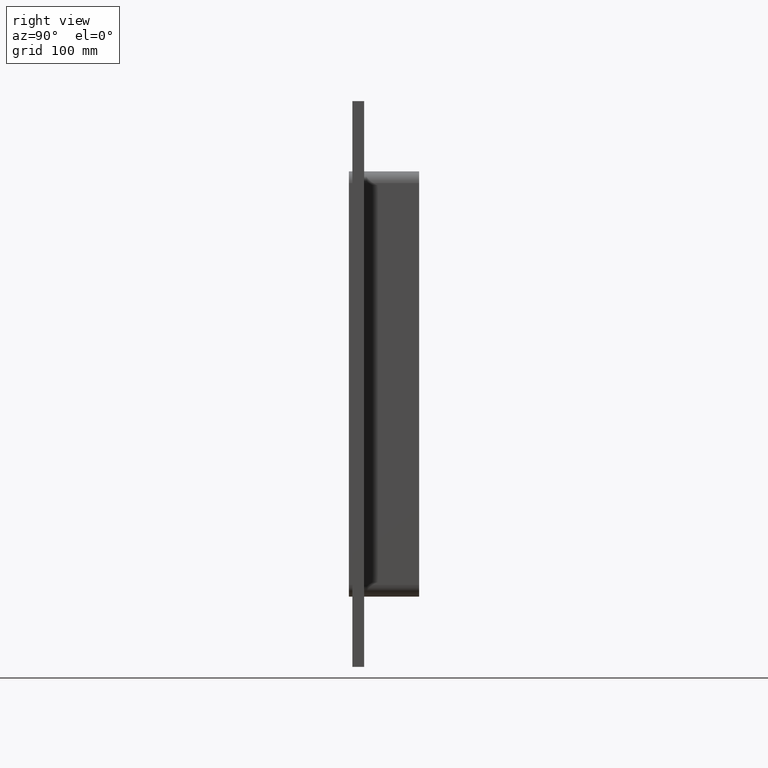
[diagram: clean part render]
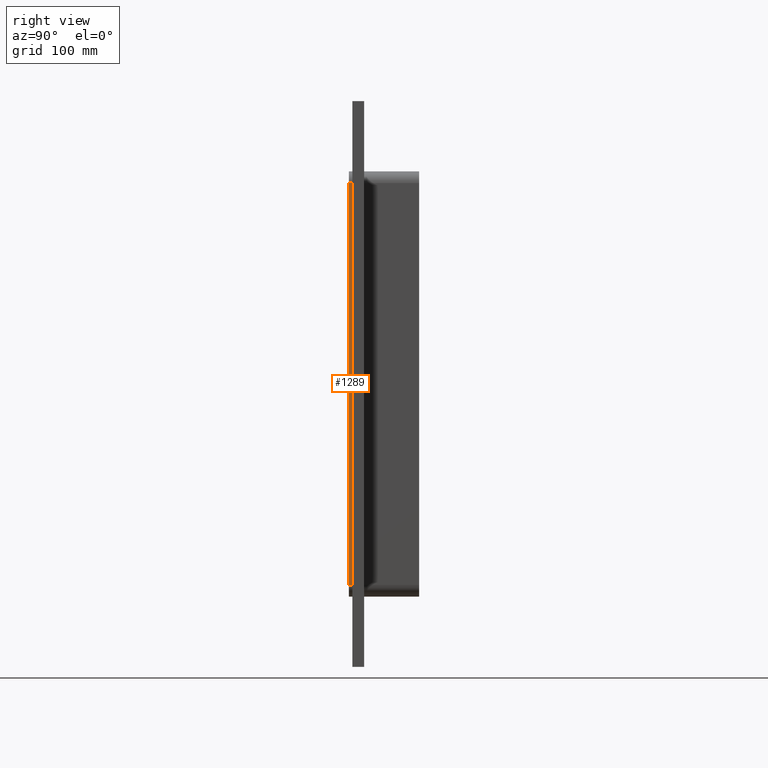
[diagram: same view with one face highlighted and labeled with its STEP entity id]
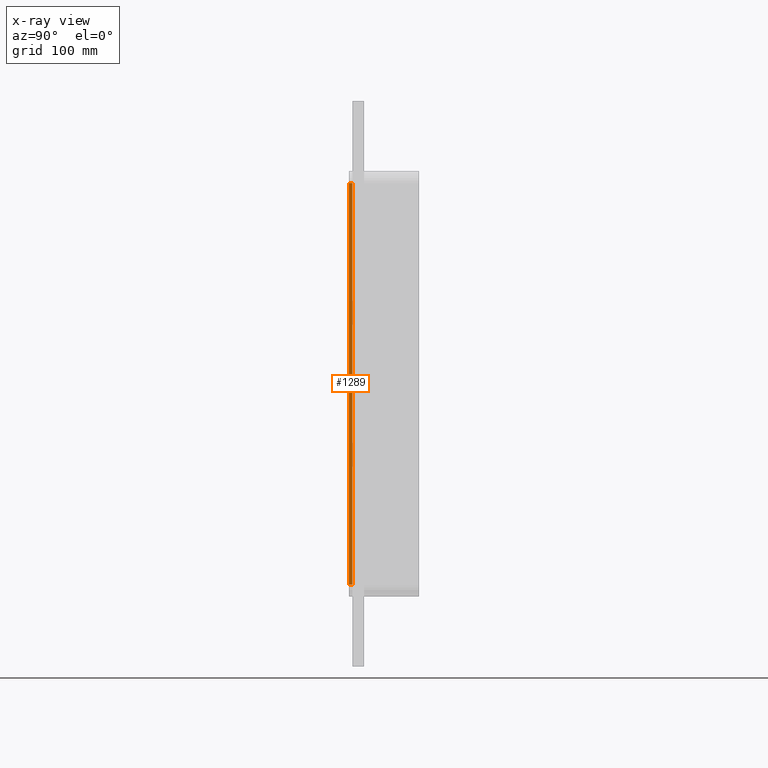
[diagram: x-ray of the same camera — body ghosted, the highlighted face saturated]
A machine part, right view. The second image highlights one B-rep face of the part: STEP entity #1289.
The next image is the same camera in x-ray: the body ghosted, the highlighted face saturated — about 0% of this face is hidden behind the body in this view.
In plain terms, the highlighted planar face has unit normal (1, 0, 0).
Its self-contained STEP definition (entity closure, byte-faithful):
#1092=CARTESIAN_POINT('',(135.5,0.0,171.50000000000003));
#1093=VERTEX_POINT('',#1092);
#1101=CARTESIAN_POINT('',(135.5,0.0,-171.50000000000003));
#1102=VERTEX_POINT('',#1101);
#1103=CARTESIAN_POINT('',(135.5,0.0,-171.5));
#1104=DIRECTION('',(0.0,0.0,1.0));
#1105=VECTOR('',#1104,343.0);
#1106=LINE('',#1103,#1105);
#1107=EDGE_CURVE('',#1102,#1093,#1106,.T.);
#1226=CARTESIAN_POINT('',(135.5,-3.0,171.50000000000003));
#1227=VERTEX_POINT('',#1226);
#1235=CARTESIAN_POINT('',(135.5,-3.0,171.50000000000003));
#1236=DIRECTION('',(0.0,1.0,0.0));
#1237=VECTOR('',#1236,3.0);
#1238=LINE('',#1235,#1237);
#1239=EDGE_CURVE('',#1227,#1093,#1238,.T.);
#1266=CARTESIAN_POINT('',(135.5,0.0,181.50000000000003));
#1267=DIRECTION('',(1.0,0.0,0.0));
#1268=DIRECTION('',(0.0,0.0,-1.0));
#1269=AXIS2_PLACEMENT_3D('',#1266,#1267,#1268);
#1270=PLANE('',#1269);
#1271=ORIENTED_EDGE('',*,*,#1107,.T.);
#1272=ORIENTED_EDGE('',*,*,#1239,.F.);
#1273=CARTESIAN_POINT('',(135.5,-3.0,-171.50000000000003));
#1274=VERTEX_POINT('',#1273);
#1275=CARTESIAN_POINT('',(135.5,-3.0,-171.50000000000003));
#1276=DIRECTION('',(0.0,0.0,1.0));
#1277=VECTOR('',#1276,343.00000000000006);
#1278=LINE('',#1275,#1277);
#1279=EDGE_CURVE('',#1274,#1227,#1278,.T.);
#1280=ORIENTED_EDGE('',*,*,#1279,.F.);
#1281=CARTESIAN_POINT('',(135.5,0.0,-171.50000000000003));
#1282=DIRECTION('',(0.0,-1.0,0.0));
#1283=VECTOR('',#1282,3.0);
#1284=LINE('',#1281,#1283);
#1285=EDGE_CURVE('',#1102,#1274,#1284,.T.);
#1286=ORIENTED_EDGE('',*,*,#1285,.F.);
#1287=EDGE_LOOP('',(#1271,#1272,#1280,#1286));
#1288=FACE_OUTER_BOUND('',#1287,.T.);
#1289=ADVANCED_FACE('',(#1288),#1270,.T.);